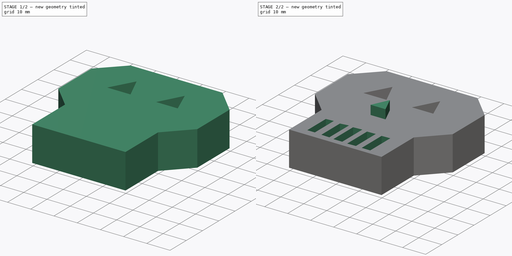
[diagram: build sequence overview — one tinted view per stage of 2, left to right]
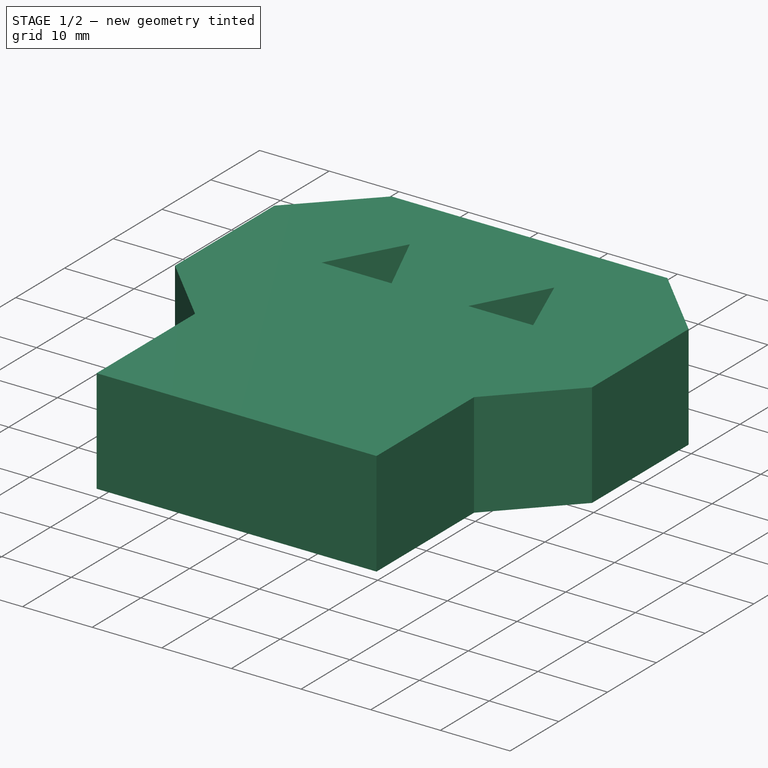
[diagram: stage 1 of 2 — iso view after this stage's code; geometry added in this stage tinted green]
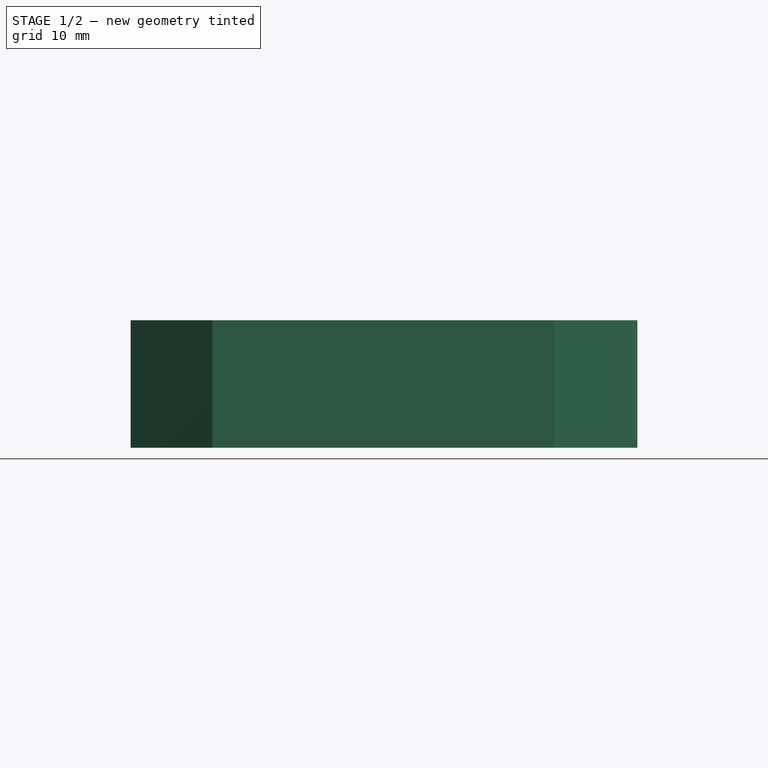
[diagram: stage 1 of 2 — front view after this stage's code; geometry added in this stage tinted green]
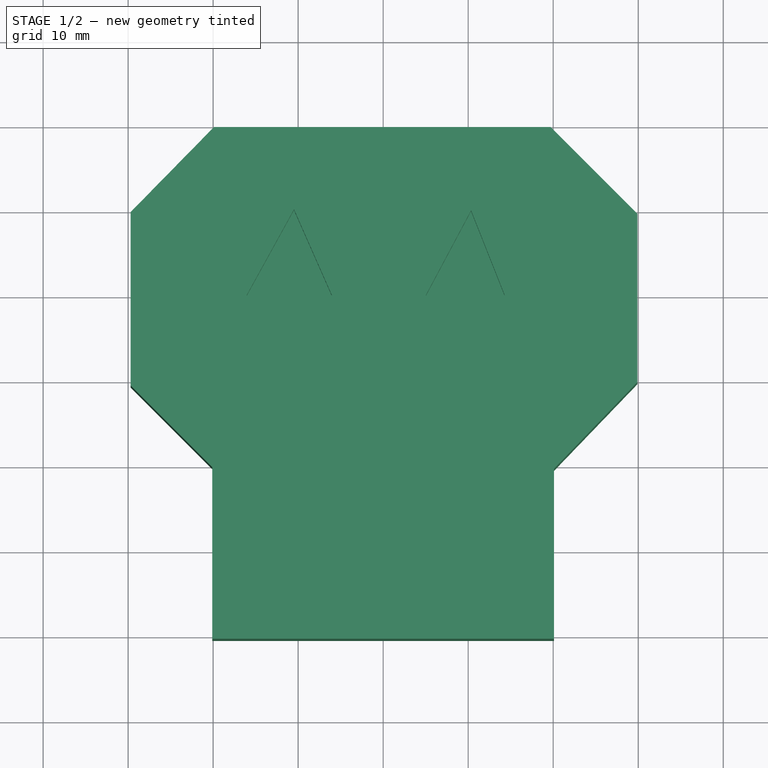
[diagram: stage 1 of 2 — top view after this stage's code; geometry added in this stage tinted green]
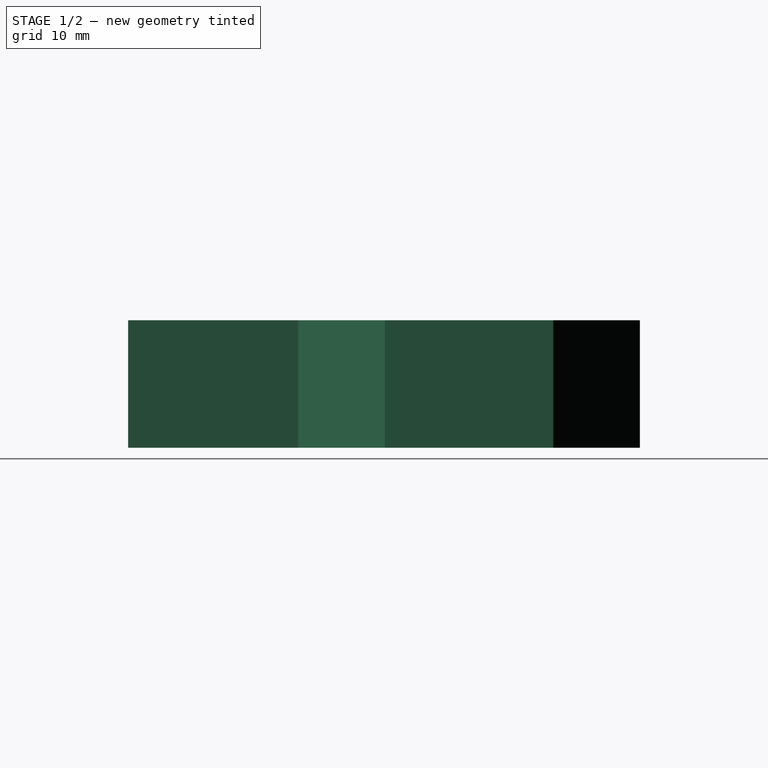
[diagram: stage 1 of 2 — right view after this stage's code; geometry added in this stage tinted green]
FCSTD DOCUMENT  (FreeCAD 1.0R39319 (Git))
Label: ojt1_t17_r01_skull
License: All rights reserved
LicenseURL: https://en.wikipedia.org/wiki/All_rights_reserved
objects: Sketcher::SketchObject×4, PartDesign::Pad×2, PartDesign::Pocket×2, PartDesign::Body×1
note: 21 computed .brp shape members not serialized (recipe doc carries the construction recipe); baked Part::Feature solids carry a one-line shape summary decoded from their .brp

FEATURE [Sketcher::SketchObject] Sketch
  ArcFitTolerance = 1e-06
  AttachmentSupport = -> [XY_Plane]
  FullyConstrained = false
  MakeInternals = false
  MapMode = 5
  sketch-geometry (35):
    g0: LineSegment StartX=-19.902 StartY=19.8039 StartZ=0 EndX=19.7058 EndY=19.8039 EndZ=0
    g1: LineSegment StartX=19.7058 StartY=19.8039 StartZ=0 EndX=29.9019 EndY=9.60787 EndZ=0
    g2: LineSegment StartX=29.9019 StartY=9.60787 StartZ=0 EndX=29.9019 EndY=-10.1961 EndZ=0
    g3: LineSegment StartX=29.9019 StartY=-10.1961 StartZ=0 EndX=20.098 EndY=-20.3921 EndZ=0
    g4: LineSegment StartX=20.098 StartY=-20.3921 StartZ=0 EndX=20.098 EndY=-40.3921 EndZ=0
    g5: LineSegment StartX=20.098 StartY=-40.3921 StartZ=0 EndX=-20.0981 EndY=-40.3921 EndZ=0
    g6: LineSegment StartX=-20.0981 StartY=-40.3921 StartZ=0 EndX=-20.0981 EndY=-20.1961 EndZ=0
    g7: LineSegment StartX=-20.0981 StartY=-20.1961 StartZ=0 EndX=-29.7059 EndY=-10.5882 EndZ=0
    g8: LineSegment StartX=-29.7059 StartY=-10.5882 StartZ=0 EndX=-29.7059 EndY=9.80395 EndZ=0
    g9: LineSegment StartX=-29.7059 StartY=9.80395 StartZ=0 EndX=-19.902 EndY=19.8039 EndZ=0
    g10: LineSegment StartX=-10.4902 StartY=9.41179 StartZ=0 EndX=-15.9804 EndY=0 EndZ=0
    g11: LineSegment StartX=-15.9804 StartY=0 StartZ=0 EndX=-5.00003 EndY=0 EndZ=0
    g12: LineSegment StartX=-10.4902 StartY=9.41179 StartZ=0 EndX=-5.00003 EndY=0 EndZ=0
    g13: LineSegment StartX=10.2941 StartY=9.60787 StartZ=0 EndX=15.5882 EndY=0 EndZ=0
    g14: LineSegment StartX=15.5882 StartY=0 StartZ=0 EndX=4.80389 EndY=0 EndZ=0
    g15: LineSegment StartX=4.80389 StartY=0 StartZ=0 EndX=10.2941 EndY=9.60787 EndZ=0
    g16: LineSegment StartX=0 StartY=-7.45095 StartZ=0 EndX=-3.03925 EndY=-14.5098 EndZ=0
    g17: LineSegment StartX=-3.03925 StartY=-14.5098 StartZ=0 EndX=4.21565 EndY=-14.5098 EndZ=0
    g18: LineSegment StartX=0 StartY=-7.45095 StartZ=0 EndX=4.21565 EndY=-14.5098 EndZ=0
    g19: LineSegment StartX=-15.9804 StartY=-25.4902 StartZ=0 EndX=-15.9804 EndY=-37.8431 EndZ=0
    g20: LineSegment StartX=-15.9804 StartY=-37.8431 StartZ=0 EndX=-11.6667 EndY=-37.8431 EndZ=0
    g21: LineSegment StartX=-11.6667 StartY=-37.8431 StartZ=0 EndX=-11.6667 EndY=-24.9019 EndZ=0
    g22: LineSegment StartX=-11.6667 StartY=-24.9019 StartZ=0 EndX=-15.9804 EndY=-25.4902 EndZ=0
    g23: LineSegment StartX=-7.74513 StartY=-25.4902 StartZ=0 EndX=-7.74513 EndY=-38.2353 EndZ=0
    g24: LineSegment StartX=-7.74513 StartY=-38.2353 StartZ=0 EndX=-2.64709 EndY=-38.2353 EndZ=0
    g25: LineSegment StartX=-2.64709 StartY=-38.2353 StartZ=0 EndX=-2.64709 EndY=-25.2941 EndZ=0
    g26: LineSegment StartX=-2.64709 StartY=-25.2941 StartZ=0 EndX=-7.74513 EndY=-25.4902 EndZ=0
    g27: LineSegment StartX=1.27448 StartY=-25.6862 StartZ=0 EndX=1.27448 EndY=-38.0392 EndZ=0
    g28: LineSegment StartX=1.27448 StartY=-38.0392 StartZ=0 EndX=6.37252 EndY=-38.2353 EndZ=0
    g29: LineSegment StartX=6.37252 StartY=-38.2353 StartZ=0 EndX=6.37252 EndY=-25.4902 EndZ=0
    g30: LineSegment StartX=6.37252 StartY=-25.4902 StartZ=0 EndX=1.27448 EndY=-25.6862 EndZ=0
    g31: LineSegment StartX=10.4902 StartY=-25.8823 StartZ=0 EndX=10.4902 EndY=-37.8431 EndZ=0
    g32: LineSegment StartX=10.4902 StartY=-37.8431 StartZ=0 EndX=15.1961 EndY=-37.647 EndZ=0
    g33: LineSegment StartX=15.1961 StartY=-37.647 StartZ=0 EndX=15.1961 EndY=-25.4902 EndZ=0
    g34: LineSegment StartX=15.1961 StartY=-25.4902 StartZ=0 EndX=10.4902 EndY=-25.8823 EndZ=0
  constraints (46):
    c: Horizontal(g0)
    c: Coincident(g1,g0)
    c: Coincident(g2,g1)
    c: Vertical(g2)
    c: Coincident(g3,g2)
    c: Coincident(g4,g3)
    c: Vertical(g4)
    c: Coincident(g5,g4)
    c: Horizontal(g5)
    c: Vertical(g6)
    c: Vertical(g8)
    c: Coincident(g9,g8)
    c: Coincident(g9,g0)
    c: PointOnObject(g10,g-1)
    c: Coincident(g11,g10)
    c: PointOnObject(g11,g-1)
    c: Coincident(g12,g10)
    c: Coincident(g12,g11)
    c: PointOnObject(g13,g-1)
    c: Coincident(g14,g13)
    c: PointOnObject(g14,g-1)
    c: Coincident(g15,g14)
    c: Coincident(g15,g13)
    c: PointOnObject(g16,g-2)
    c: Coincident(g17,g16)
    c: Horizontal(g17)
    c: Coincident(g18,g16)
    c: Coincident(g18,g17)
    c: Vertical(g19)
    c: Horizontal(g20)
    c: Coincident(g21,g20)
    c: Vertical(g21)
    c: Coincident(g22,g19)
    c: Vertical(g23)
    c: Horizontal(g24)
    c: Coincident(g25,g24)
    c: Vertical(g25)
    c: Coincident(g26,g23)
    c: Vertical(g27)
    c: Coincident(g28,g27)
    c: Coincident(g29,g28)
    c: Vertical(g29)
    c: Coincident(g30,g27)
    c: Vertical(g31)
    c: Vertical(g33)
    c: Coincident(g34,g31)
FEATURE [PartDesign::Pad] Pad
  Direction = (0,0,1)
  Length = 15
  Length2 = 10
  Profile = -> Sketch [Edge9,Edge10,Edge1,Edge2,Edge3,Edge4,Edge5,Edge6,Edge7,Edge8]
  ReferenceAxis = -> Sketch [N_Axis]
  Refine = true
  Suppressed = false
  Type = 0
FEATURE [Sketcher::SketchObject] Sketch001
  ArcFitTolerance = 1e-06
  AttachmentSupport = -> [Pad]
  FullyConstrained = false
  MakeInternals = false
  MapMode = 5
  Placement = pos=(0,0,15) rot=(0,0,1;0rad)
  sketch-geometry (6):
    g0: LineSegment StartX=-10.4902 StartY=10.1176 StartZ=0 EndX=-16.0696 EndY=0 EndZ=0
    g1: LineSegment StartX=-6.02663 StartY=0 StartZ=0 EndX=-10.4902 EndY=10.1176 EndZ=0
    g2: LineSegment StartX=10.3397 StartY=9.99359 StartZ=0 EndX=5.00827 EndY=0 EndZ=0
    g3: LineSegment StartX=14.3073 StartY=0 StartZ=0 EndX=10.3397 EndY=9.99359 EndZ=0
    g4: LineSegment StartX=5.00827 StartY=0 StartZ=0 EndX=14.3073 EndY=0 EndZ=0
    g5: LineSegment StartX=-16.0696 StartY=0 StartZ=0 EndX=-6.02663 EndY=0 EndZ=0
  constraints (10):
    c: PointOnObject(g0,g-1)
    c: PointOnObject(g1,g-1)
    c: Coincident(g1,g0)
    c: PointOnObject(g2,g-1)
    c: PointOnObject(g3,g-1)
    c: Coincident(g3,g2)
    c: Coincident(g4,g2)
    c: Coincident(g4,g3)
    c: Coincident(g5,g0)
    c: Coincident(g5,g1)
FEATURE [PartDesign::Pocket] Pocket
  BaseFeature = -> Pad
  Direction = (0,0,-1)
  Length = 5
  Length2 = 5
  Profile = -> Sketch001
  ReferenceAxis = -> Sketch001 [N_Axis]
  Refine = true
  Suppressed = false
  Type = 0
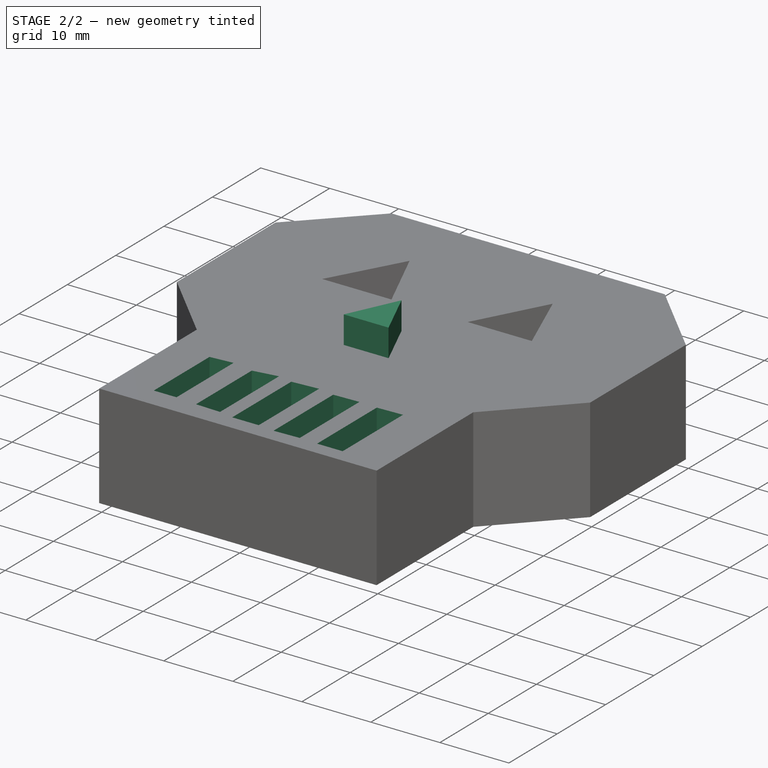
[diagram: stage 2 of 2 — iso view after this stage's code; geometry added in this stage tinted green]
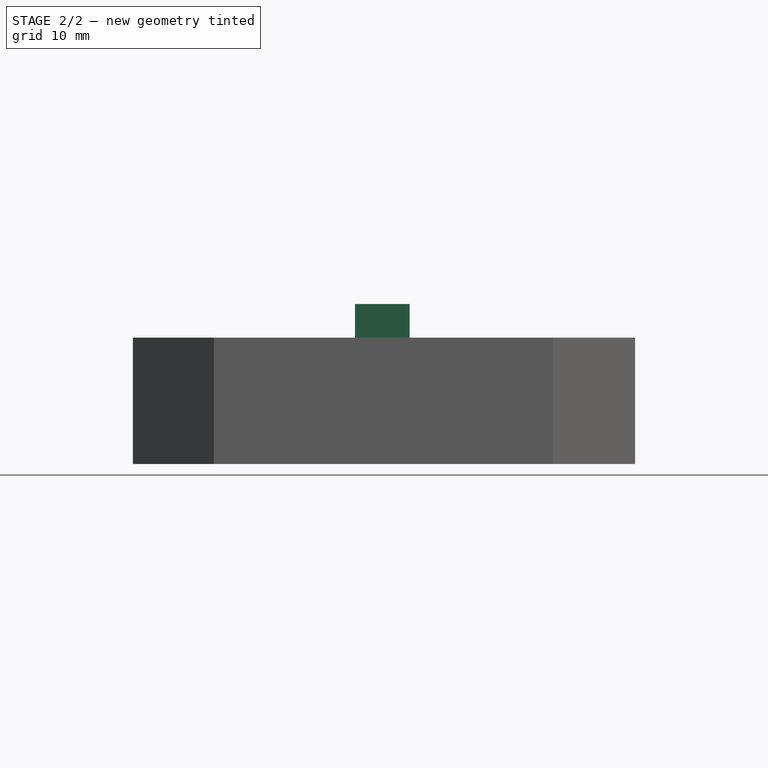
[diagram: stage 2 of 2 — front view after this stage's code; geometry added in this stage tinted green]
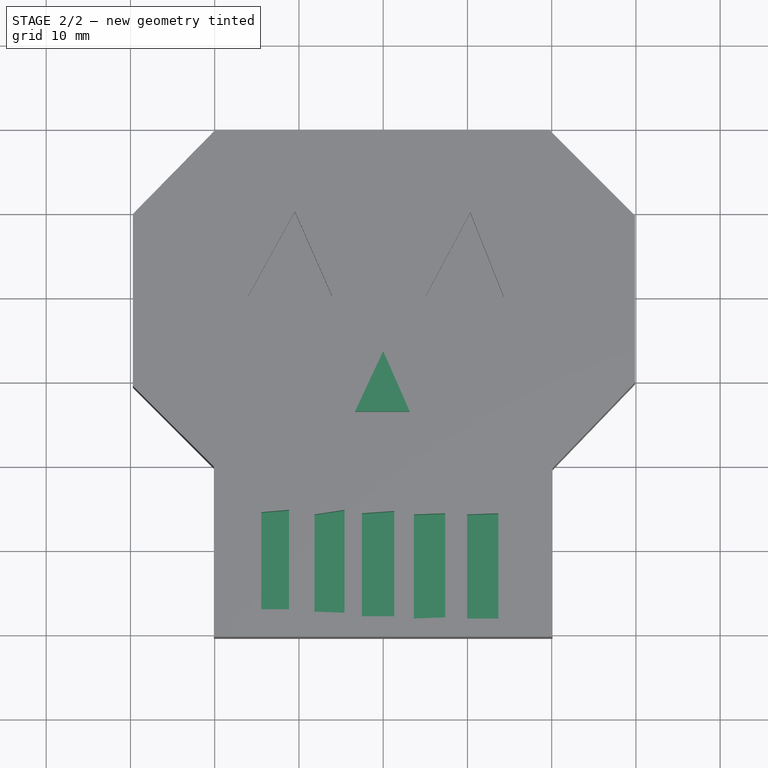
[diagram: stage 2 of 2 — top view after this stage's code; geometry added in this stage tinted green]
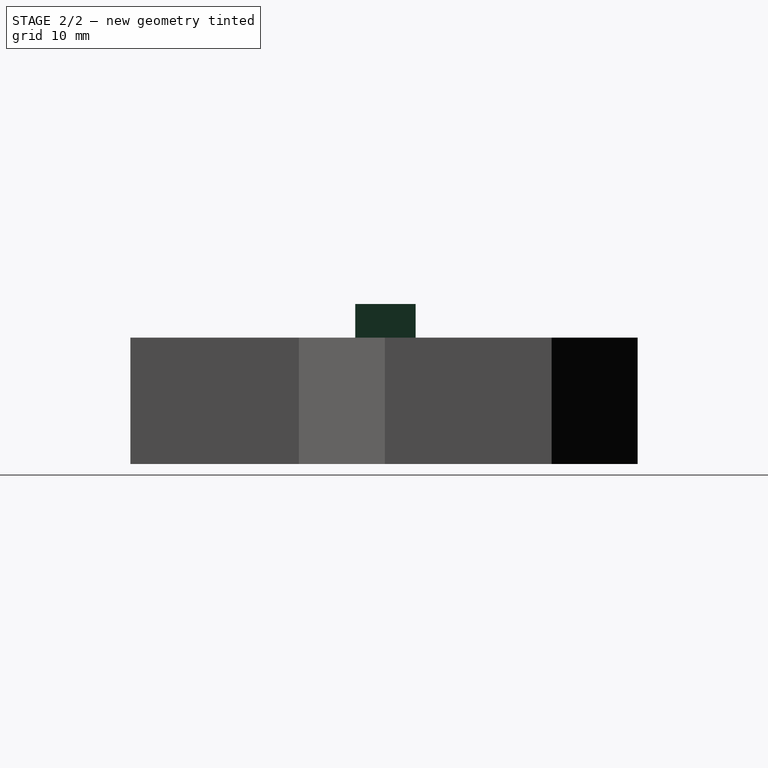
[diagram: stage 2 of 2 — right view after this stage's code; geometry added in this stage tinted green]
FEATURE [Sketcher::SketchObject] Sketch002
  ArcFitTolerance = 1e-06
  AttachmentSupport = -> [Pocket]
  FullyConstrained = false
  MakeInternals = false
  MapMode = 5
  Placement = pos=(0,0,15) rot=(0,0,1;0rad)
  sketch-geometry (3):
    g0: LineSegment StartX=0 StartY=-6.53829 StartZ=0 EndX=-3.34321 EndY=-13.7046 EndZ=0
    g1: LineSegment StartX=0 StartY=-6.53829 StartZ=0 EndX=3.14699 EndY=-13.7046 EndZ=0
    g2: LineSegment StartX=3.14699 StartY=-13.7046 StartZ=0 EndX=-3.34321 EndY=-13.7046 EndZ=0
  constraints (4):
    c: PointOnObject(g0,g-2)
    c: Coincident(g1,g0)
    c: Coincident(g2,g0)
    c: Horizontal(g2)
FEATURE [PartDesign::Pad] Pad001
  BaseFeature = -> Pocket
  Direction = (0,0,1)
  Length = 4
  Length2 = 10
  Profile = -> Sketch002
  ReferenceAxis = -> Sketch002 [N_Axis]
  Refine = true
  Suppressed = false
  Type = 0
FEATURE [Sketcher::SketchObject] Sketch003
  ArcFitTolerance = 1e-06
  AttachmentSupport = -> [Pad001]
  FullyConstrained = false
  MakeInternals = false
  MapMode = 5
  Placement = pos=(0,0,15) rot=(0,0,1;0rad)
  sketch-geometry (20):
    g0: LineSegment StartX=-14.4664 StartY=-25.6032 StartZ=0 EndX=-14.4664 EndY=-37.1327 EndZ=0
    g1: LineSegment StartX=-14.4664 StartY=-37.1327 StartZ=0 EndX=-11.1722 EndY=-37.1327 EndZ=0
    g2: LineSegment StartX=-11.1722 StartY=-37.1327 StartZ=0 EndX=-11.1722 EndY=-25.3287 EndZ=0
    g3: LineSegment StartX=-11.1722 StartY=-25.3287 StartZ=0 EndX=-14.4664 EndY=-25.6032 EndZ=0
    g4: LineSegment StartX=-8.1526 StartY=-25.8777 StartZ=0 EndX=-8.1526 EndY=-37.4072 EndZ=0
    g5: LineSegment StartX=-8.1526 StartY=-37.4072 StartZ=0 EndX=-4.58395 EndY=-37.5445 EndZ=0
    g6: LineSegment StartX=-4.58395 StartY=-37.5445 StartZ=0 EndX=-4.58395 EndY=-25.3287 EndZ=0
    g7: LineSegment StartX=-4.58395 StartY=-25.3287 StartZ=0 EndX=-8.1526 EndY=-25.8777 EndZ=0
    g8: LineSegment StartX=-2.5251 StartY=-25.7404 StartZ=0 EndX=-2.5251 EndY=-37.9562 EndZ=0
    g9: LineSegment StartX=-2.5251 StartY=-37.9562 StartZ=0 EndX=1.31807 EndY=-37.9562 EndZ=0
    g10: LineSegment StartX=1.31807 StartY=-37.9562 StartZ=0 EndX=1.31807 EndY=-25.4659 EndZ=0
    g11: LineSegment StartX=-2.5251 StartY=-25.7404 StartZ=0 EndX=1.31807 EndY=-25.4659 EndZ=0
    g12: LineSegment StartX=3.65142 StartY=-25.8777 StartZ=0 EndX=3.65142 EndY=-38.2307 EndZ=0
    g13: LineSegment StartX=3.65142 StartY=-38.2307 StartZ=0 EndX=7.35733 EndY=-38.0935 EndZ=0
    g14: LineSegment StartX=7.35733 StartY=-38.0935 StartZ=0 EndX=7.35733 EndY=-25.7404 EndZ=0
    g15: LineSegment StartX=7.35733 StartY=-25.7404 StartZ=0 EndX=3.65142 EndY=-25.8777 EndZ=0
    g16: LineSegment StartX=9.9652 StartY=-25.8777 StartZ=0 EndX=9.9652 EndY=-38.2307 EndZ=0
    g17: LineSegment StartX=9.9652 StartY=-38.2307 StartZ=0 EndX=13.6711 EndY=-38.2307 EndZ=0
    g18: LineSegment StartX=13.6711 StartY=-38.2307 StartZ=0 EndX=13.6711 EndY=-25.7404 EndZ=0
    g19: LineSegment StartX=13.6711 StartY=-25.7404 StartZ=0 EndX=9.9652 EndY=-25.8777 EndZ=0
  constraints (24):
    c: Vertical(g0)
    c: Coincident(g1,g0)
    c: Horizontal(g1)
    c: Coincident(g2,g1)
    c: Vertical(g2)
    c: Coincident(g3,g0)
    c: Vertical(g4)
    c: Coincident(g5,g4)
    c: Coincident(g6,g5)
    c: Vertical(g6)
    c: Coincident(g7,g4)
    c: Vertical(g8)
    c: Coincident(g9,g8)
    c: Horizontal(g9)
    c: Vertical(g10)
    c: Coincident(g11,g8)
    c: Coincident(g11,g10)
    c: Vertical(g12)
    c: Vertical(g14)
    c: Coincident(g15,g12)
    c: Vertical(g16)
    c: Horizontal(g17)
    c: Vertical(g18)
    c: Coincident(g19,g16)
FEATURE [PartDesign::Pocket] Pocket001
  BaseFeature = -> Pad001
  Direction = (0,0,-1)
  Length = 5
  Length2 = 5
  Profile = -> Sketch003
  ReferenceAxis = -> Sketch003 [N_Axis]
  Refine = true
  Suppressed = false
  Type = 0
FEATURE [PartDesign::Body] Body  label="Cos"
  AllowCompound = false
  Group = -> [Sketch,Pad,Sketch001,Pocket,Sketch002,Pad001,Sketch003,Pocket001]
  Origin = -> Origin
  Tip = -> Pocket001
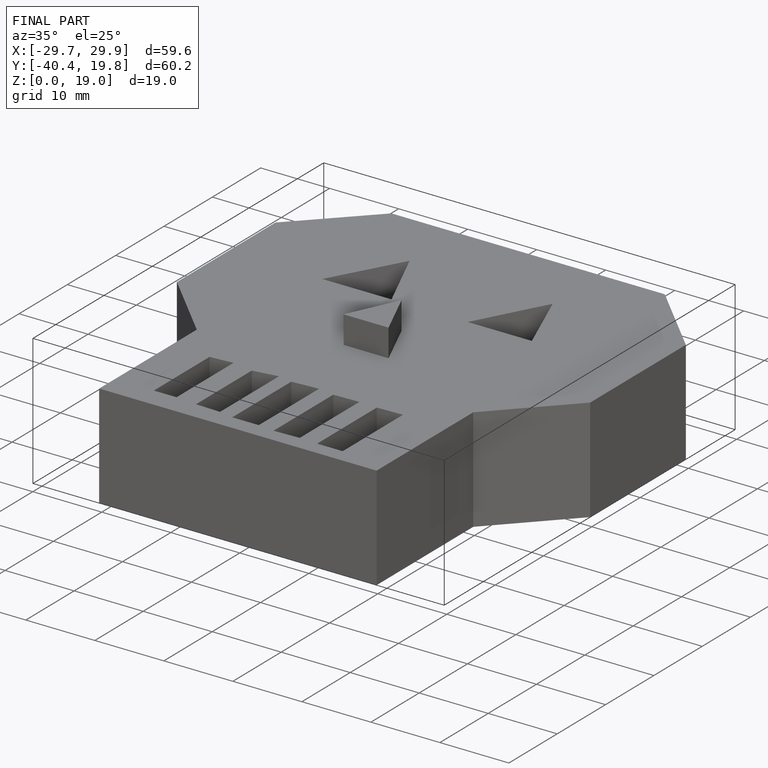
[diagram: finished part — iso view with bounding-box wireframe]
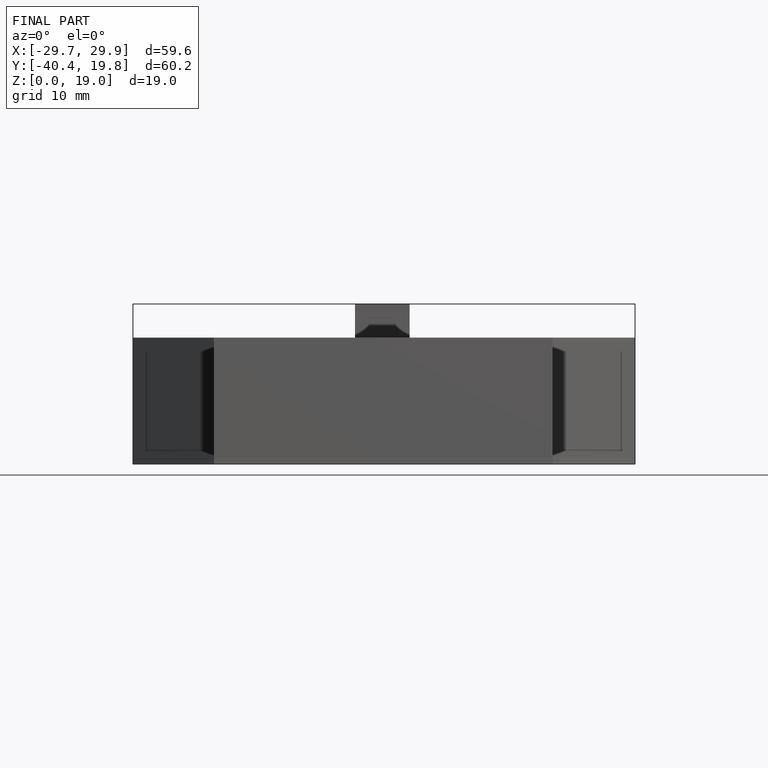
[diagram: finished part — front view with bounding-box wireframe]
